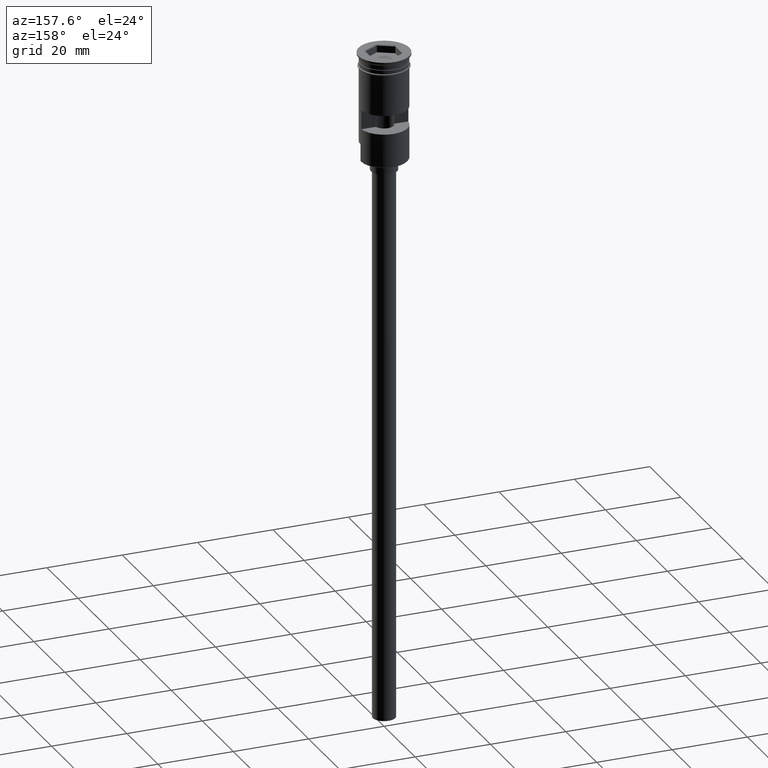
[diagram: clean part render]
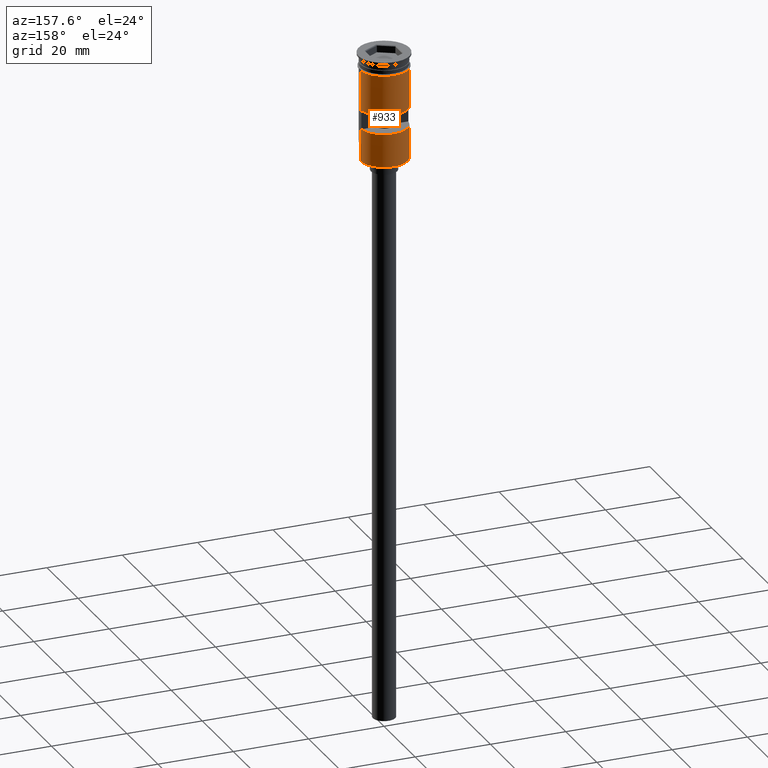
[diagram: same view with one face highlighted and labeled with its STEP entity id]
A machine part, auxiliary view. The second image highlights one B-rep face of the part: STEP entity #933.
In plain terms, the highlighted cylindrical surface (edge-blend (fillet) strip) has radius 6.25 mm, axis along (-0, -0, 1).
Its self-contained STEP definition (entity closure, byte-faithful):
#11 = VECTOR ( 'NONE', #275, 1000.000000000000000 ) ;
#12 = AXIS2_PLACEMENT_3D ( 'NONE', #1386, #786, #273 ) ;
#40 = CARTESIAN_POINT ( 'NONE',  ( 0.000000000000000000, 0.000000000000000000, -3.799999999999998490 ) ) ;
#51 = CARTESIAN_POINT ( 'NONE',  ( 0.000000000000000000, 0.000000000000000000, -19.50000000000000355 ) ) ;
#88 = LINE ( 'NONE', #1572, #961 ) ;
#94 = EDGE_CURVE ( 'NONE', #1047, #934, #216, .T. ) ;
#128 = CARTESIAN_POINT ( 'NONE',  ( -6.249999999999995559, 0.000000000000000000, -28.50000000000000000 ) ) ;
#130 = DIRECTION ( 'NONE',  ( 1.000000000000000000, 0.000000000000000000, 0.000000000000000000 ) ) ;
#131 = VERTEX_POINT ( 'NONE', #316 ) ;
#158 = CARTESIAN_POINT ( 'NONE',  ( -6.249999999999997335, 7.654042494670954648E-16, 0.000000000000000000 ) ) ;
#163 = LINE ( 'NONE', #766, #11 ) ;
#169 = EDGE_LOOP ( 'NONE', ( #412, #921, #602, #727 ) ) ;
#189 = VECTOR ( 'NONE', #1103, 1000.000000000000000 ) ;
#192 = VERTEX_POINT ( 'NONE', #895 ) ;
#199 = ORIENTED_EDGE ( 'NONE', *, *, #232, .T. ) ;
#216 = CIRCLE ( 'NONE', #1087, 6.249999999999997335 ) ;
#232 = EDGE_CURVE ( 'NONE', #934, #192, #754, .T. ) ;
#250 = DIRECTION ( 'NONE',  ( -0.000000000000000000, -0.000000000000000000, 1.000000000000000000 ) ) ;
#258 = CARTESIAN_POINT ( 'NONE',  ( -6.249999999999995559, 0.000000000000000000, -28.29999999999999716 ) ) ;
#273 = DIRECTION ( 'NONE',  ( 0.000000000000000000, -1.000000000000000000, 2.775557561562892337E-16 ) ) ;
#275 = DIRECTION ( 'NONE',  ( -0.000000000000000000, -0.000000000000000000, 1.000000000000000000 ) ) ;
#316 = CARTESIAN_POINT ( 'NONE',  ( -6.250000000000000000, 7.654042494670958593E-16, -3.799999999999998490 ) ) ;
#343 = CARTESIAN_POINT ( 'NONE',  ( 6.221133337262590324, 0.5999999999999999778, 0.000000000000000000 ) ) ;
#348 = CARTESIAN_POINT ( 'NONE',  ( 6.250000000000000000, 0.000000000000000000, -3.799999999999998490 ) ) ;
#371 = VERTEX_POINT ( 'NONE', #348 ) ;
#378 = CARTESIAN_POINT ( 'NONE',  ( 6.221133337262590324, 0.5999999999999999778, -19.50000000000000355 ) ) ;
#409 = ORIENTED_EDGE ( 'NONE', *, *, #474, .F. ) ;
#412 = ORIENTED_EDGE ( 'NONE', *, *, #772, .F. ) ;
#438 = CARTESIAN_POINT ( 'NONE',  ( -6.221133337262590324, 0.5999999999999999778, -19.50000000000000355 ) ) ;
#441 = CARTESIAN_POINT ( 'NONE',  ( -6.221133337262590324, 0.5999999999999999778, -14.49999999999999822 ) ) ;
#474 = EDGE_CURVE ( 'NONE', #371, #131, #555, .T. ) ;
#480 = VECTOR ( 'NONE', #250, 1000.000000000000000 ) ;
#503 = EDGE_CURVE ( 'NONE', #1047, #573, #163, .T. ) ;
#534 = DIRECTION ( 'NONE',  ( -1.000000000000000000, 0.000000000000000000, 0.000000000000000000 ) ) ;
#555 = CIRCLE ( 'NONE', #681, 6.250000000000000000 ) ;
#570 = ORIENTED_EDGE ( 'NONE', *, *, #704, .F. ) ;
#573 = VERTEX_POINT ( 'NONE', #1057 ) ;
#602 = ORIENTED_EDGE ( 'NONE', *, *, #1106, .F. ) ;
#617 = DIRECTION ( 'NONE',  ( -0.000000000000000000, -0.000000000000000000, 1.000000000000000000 ) ) ;
#619 = ORIENTED_EDGE ( 'NONE', *, *, #848, .T. ) ;
#631 = VERTEX_POINT ( 'NONE', #441 ) ;
#646 = FACE_OUTER_BOUND ( 'NONE', #706, .T. ) ;
#681 = AXIS2_PLACEMENT_3D ( 'NONE', #40, #1522, #1145 ) ;
#699 = VERTEX_POINT ( 'NONE', #378 ) ;
#704 = EDGE_CURVE ( 'NONE', #573, #371, #1498, .T. ) ;
#706 = EDGE_LOOP ( 'NONE', ( #199, #619, #409, #570, #1445, #952 ) ) ;
#727 = ORIENTED_EDGE ( 'NONE', *, *, #1537, .F. ) ;
#744 = VECTOR ( 'NONE', #617, 1000.000000000000000 ) ;
#754 = LINE ( 'NONE', #128, #744 ) ;
#756 = CYLINDRICAL_SURFACE ( 'NONE', #1594, 6.249999999999997335 ) ;
#766 = CARTESIAN_POINT ( 'NONE',  ( 6.249999999999995559, 7.654042494670950704E-16, -28.50000000000000000 ) ) ;
#772 = EDGE_CURVE ( 'NONE', #1550, #699, #1476, .T. ) ;
#786 = DIRECTION ( 'NONE',  ( -0.000000000000000000, -3.070307037127093647E-16, -1.000000000000000000 ) ) ;
#848 = EDGE_CURVE ( 'NONE', #192, #131, #909, .T. ) ;
#857 = DIRECTION ( 'NONE',  ( 0.000000000000000000, 0.000000000000000000, -1.000000000000000000 ) ) ;
#895 = CARTESIAN_POINT ( 'NONE',  ( -6.249999999999995559, 0.000000000000000000, -23.80000000000000782 ) ) ;
#905 = VECTOR ( 'NONE', #857, 1000.000000000000000 ) ;
#909 = LINE ( 'NONE', #158, #480 ) ;
#912 = EDGE_CURVE ( 'NONE', #631, #1550, #1497, .T. ) ;
#920 = DIRECTION ( 'NONE',  ( -0.000000000000000000, -0.000000000000000000, 1.000000000000000000 ) ) ;
#921 = ORIENTED_EDGE ( 'NONE', *, *, #912, .F. ) ;
#929 = CARTESIAN_POINT ( 'NONE',  ( 6.221133337262590324, 0.5999999999999999778, -14.49999999999999822 ) ) ;
#933 = ADVANCED_FACE ( 'NONE', ( #1277, #646 ), #756, .T. ) ;
#934 = VERTEX_POINT ( 'NONE', #258 ) ;
#952 = ORIENTED_EDGE ( 'NONE', *, *, #94, .T. ) ;
#961 = VECTOR ( 'NONE', #920, 1000.000000000000000 ) ;
#1008 = VERTEX_POINT ( 'NONE', #438 ) ;
#1047 = VERTEX_POINT ( 'NONE', #1304 ) ;
#1053 = DIRECTION ( 'NONE',  ( -1.000000000000000000, 0.000000000000000000, 0.000000000000000000 ) ) ;
#1057 = CARTESIAN_POINT ( 'NONE',  ( 6.249999999999997335, 7.654042494670953662E-16, -23.80000000000000782 ) ) ;
#1087 = AXIS2_PLACEMENT_3D ( 'NONE', #1505, #1284, #534 ) ;
#1097 = CIRCLE ( 'NONE', #1297, 6.249999999999997335 ) ;
#1103 = DIRECTION ( 'NONE',  ( -0.000000000000000000, -0.000000000000000000, 1.000000000000000000 ) ) ;
#1106 = EDGE_CURVE ( 'NONE', #1008, #631, #88, .T. ) ;
#1145 = DIRECTION ( 'NONE',  ( 1.000000000000000000, 0.000000000000000000, 0.000000000000000000 ) ) ;
#1165 = CARTESIAN_POINT ( 'NONE',  ( 0.000000000000000000, 0.000000000000000000, 0.000000000000000000 ) ) ;
#1277 = FACE_BOUND ( 'NONE', #169, .T. ) ;
#1284 = DIRECTION ( 'NONE',  ( 0.000000000000000000, 0.000000000000000000, 1.000000000000000000 ) ) ;
#1297 = AXIS2_PLACEMENT_3D ( 'NONE', #51, #1536, #1053 ) ;
#1304 = CARTESIAN_POINT ( 'NONE',  ( 6.249999999999995559, 7.654042494670950704E-16, -28.29999999999999716 ) ) ;
#1386 = CARTESIAN_POINT ( 'NONE',  ( 0.000000000000000000, 0.000000000000000000, -14.49999999999999822 ) ) ;
#1445 = ORIENTED_EDGE ( 'NONE', *, *, #503, .F. ) ;
#1476 = LINE ( 'NONE', #343, #905 ) ;
#1497 = CIRCLE ( 'NONE', #12, 6.249999999999997335 ) ;
#1498 = LINE ( 'NONE', #1600, #189 ) ;
#1505 = CARTESIAN_POINT ( 'NONE',  ( 0.000000000000000000, 0.000000000000000000, -28.29999999999999716 ) ) ;
#1511 = DIRECTION ( 'NONE',  ( -0.000000000000000000, -0.000000000000000000, 1.000000000000000000 ) ) ;
#1522 = DIRECTION ( 'NONE',  ( -0.000000000000000000, -0.000000000000000000, 1.000000000000000000 ) ) ;
#1536 = DIRECTION ( 'NONE',  ( 0.000000000000000000, 0.000000000000000000, 1.000000000000000000 ) ) ;
#1537 = EDGE_CURVE ( 'NONE', #699, #1008, #1097, .T. ) ;
#1550 = VERTEX_POINT ( 'NONE', #929 ) ;
#1572 = CARTESIAN_POINT ( 'NONE',  ( -6.221133337262590324, 0.5999999999999999778, 0.000000000000000000 ) ) ;
#1594 = AXIS2_PLACEMENT_3D ( 'NONE', #1165, #1511, #130 ) ;
#1600 = CARTESIAN_POINT ( 'NONE',  ( 6.249999999999997335, 0.000000000000000000, 0.000000000000000000 ) ) ;